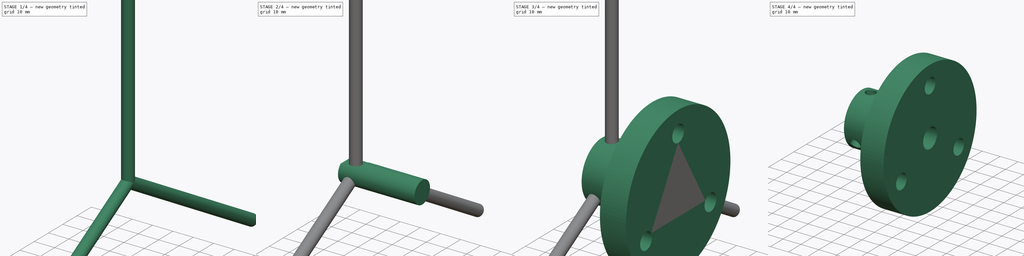
[diagram: build sequence overview — one tinted view per stage of 4, left to right]
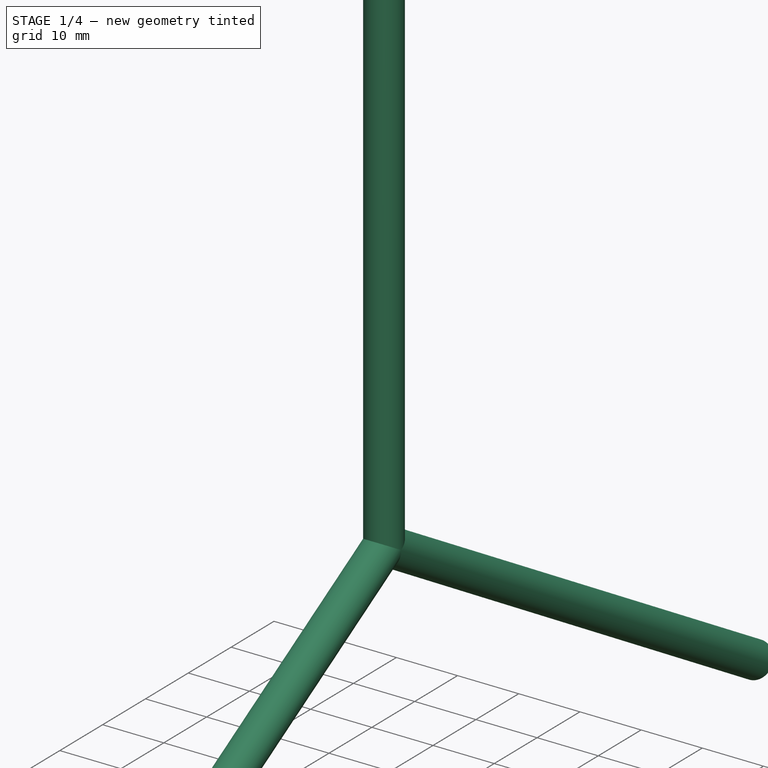
[diagram: stage 1 of 4 — iso view after this stage's code; geometry added in this stage tinted green]
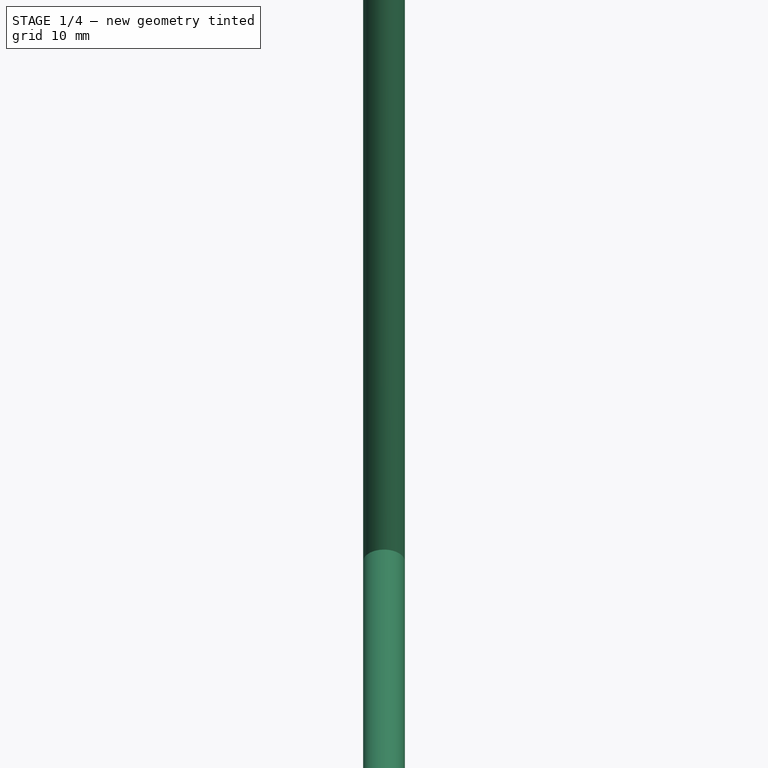
[diagram: stage 1 of 4 — front view after this stage's code; geometry added in this stage tinted green]
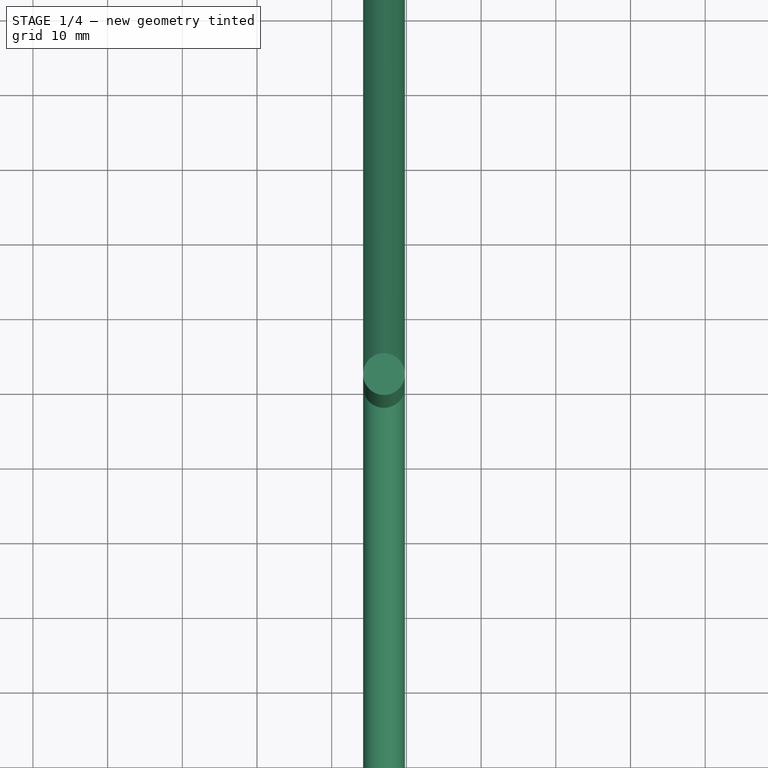
[diagram: stage 1 of 4 — top view after this stage's code; geometry added in this stage tinted green]
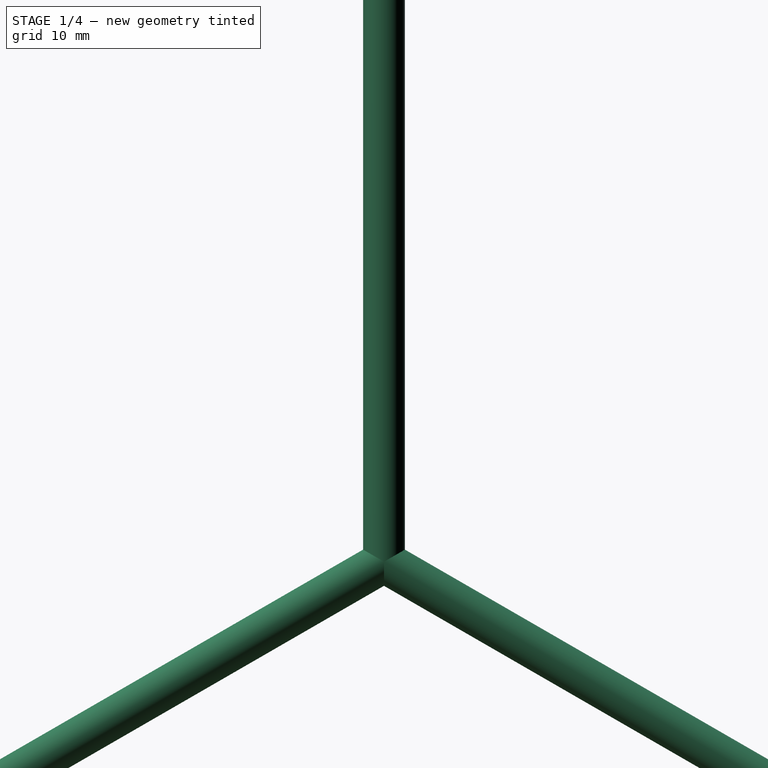
[diagram: stage 1 of 4 — right view after this stage's code; geometry added in this stage tinted green]
FCSTD DOCUMENT  (FreeCAD 0.15R4606 (Git))
Label: hub
License: All rights reserved
LicenseURL: http://en.wikipedia.org/wiki/All_rights_reserved
objects: Sketcher::SketchObject×3, Part::Cut×3, Part::Cylinder×2, App::MeasureDistance×2, PartDesign::Revolution×1, PartDesign::Pad×1, PartDesign::Pocket×1, Part::FeaturePython×1
note: 15 computed .brp shape members not serialized (recipe doc carries the construction recipe); baked Part::Feature solids carry a one-line shape summary decoded from their .brp

FEATURE [Part::Cylinder] Cylinder  label="Set Screw Hole"
  Angle = 360
  Height = 100
  Placement = pos=(-33,0,0) rot=(0,0,1;0rad)
  Radius = 2.8
FEATURE [Part::FeaturePython] Array  label="Set Screw Array"  # Draft array (typed FeaturePython)
  Angle = 360
  ArrayType = 1
  Axis = (1,0,0)
  Base = -> Cylinder
  Center = (0,0,0)
  Fuse = false
  IntervalAxis = (0,0,0)
  IntervalX = (1,0,0)
  IntervalY = (0,1,0)
  IntervalZ = (0,0,0)
  NumberPolar = 3
  NumberX = 2
  NumberY = 2
  NumberZ = 1
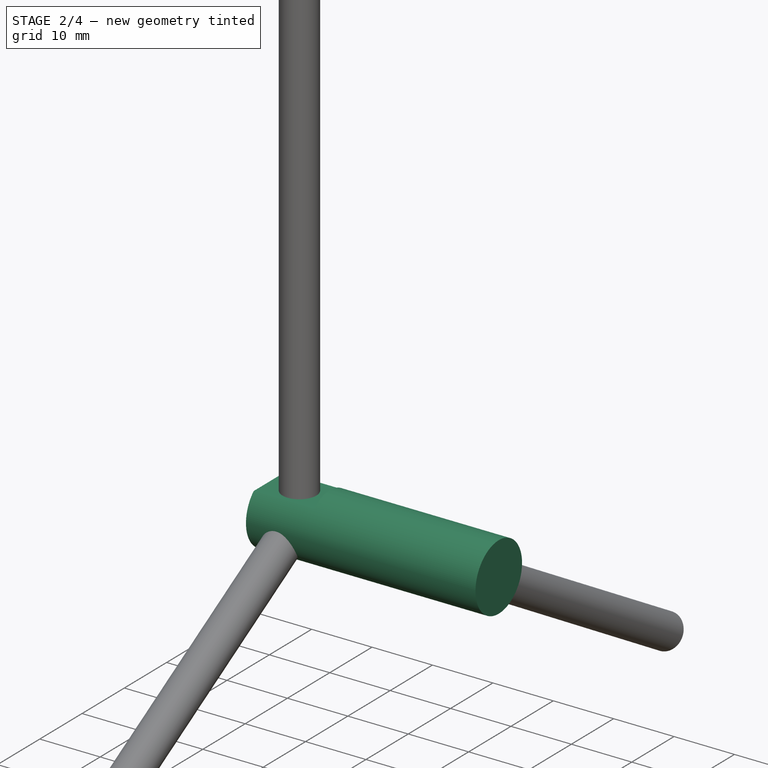
[diagram: stage 2 of 4 — iso view after this stage's code; geometry added in this stage tinted green]
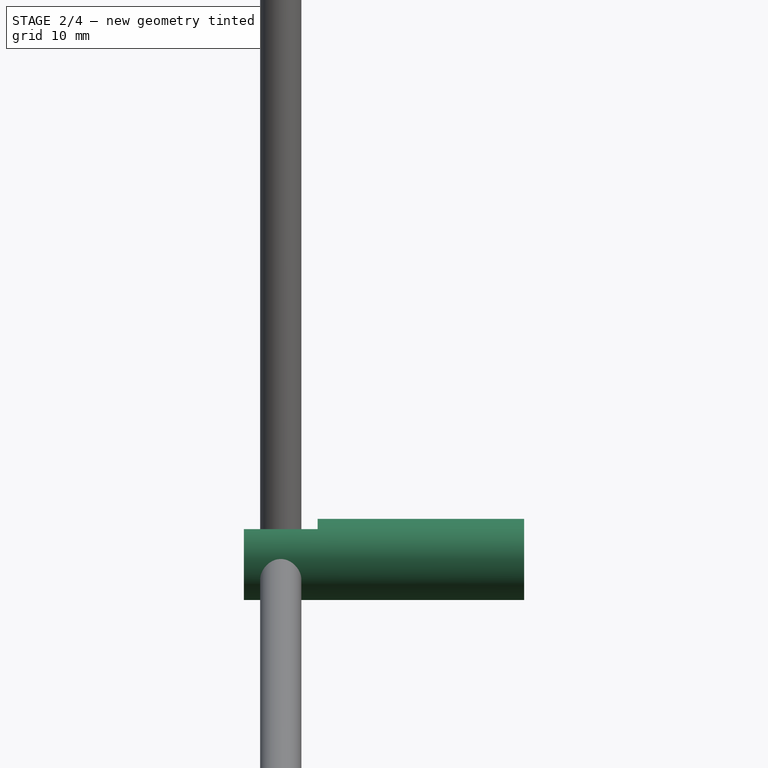
[diagram: stage 2 of 4 — front view after this stage's code; geometry added in this stage tinted green]
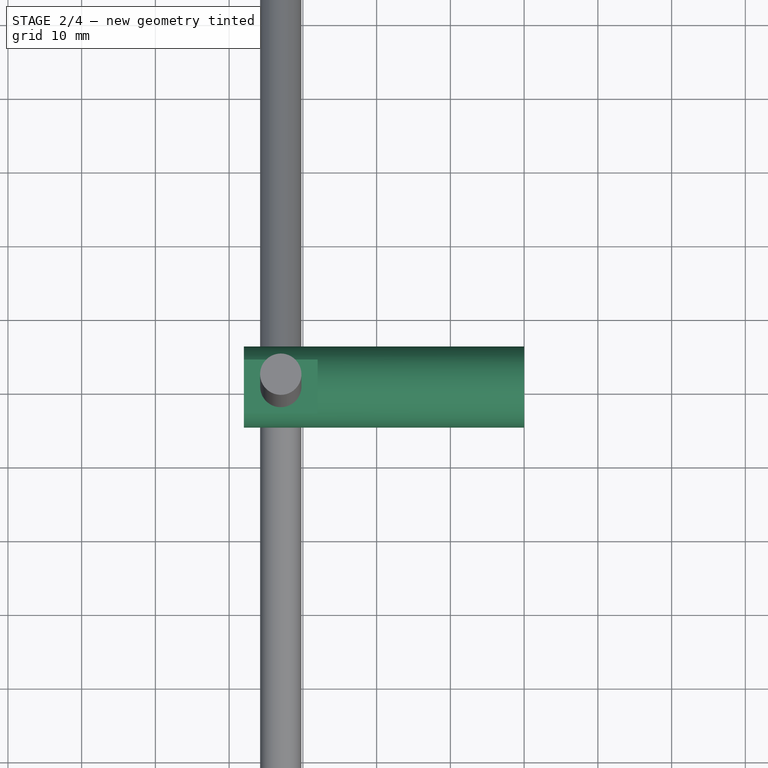
[diagram: stage 2 of 4 — top view after this stage's code; geometry added in this stage tinted green]
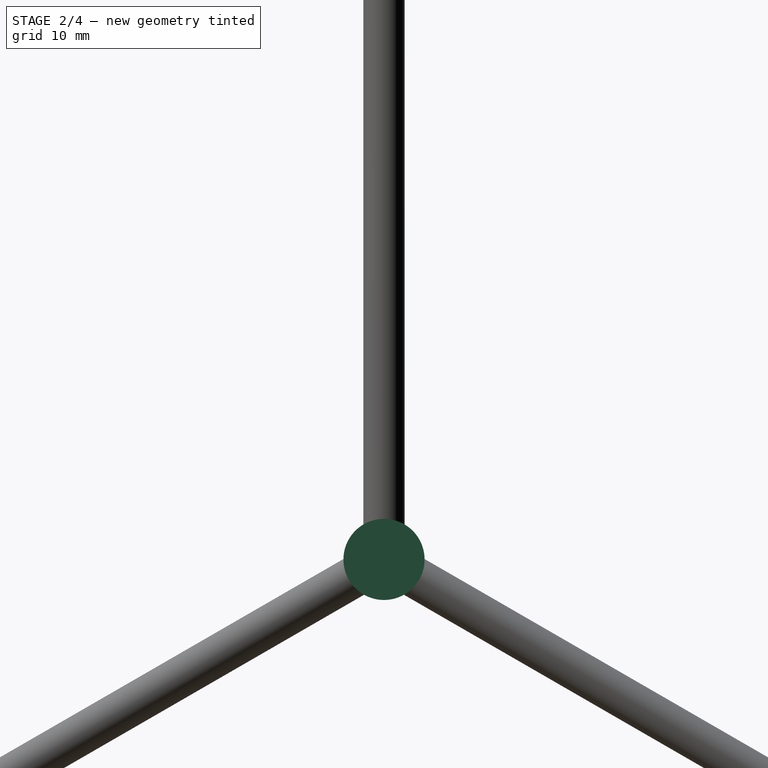
[diagram: stage 2 of 4 — right view after this stage's code; geometry added in this stage tinted green]
FEATURE [Part::Cylinder] Cylinder001  label="Cylinder"
  Angle = 360
  Height = 38
  Placement = pos=(0,0,0) rot=(0,-1,0;1.5708rad)
  Radius = 5.5
FEATURE [App::MeasureDistance] Distance  label="Distance: 28.271"
  Distance = 28.2708
  P1 = (-38,9.04839,-11.0279)
  P2 = (-38,-11.7192,8.15405)
FEATURE [Sketcher::SketchObject] Sketch003  label="D-Bore Sketch"
  Placement = pos=(-38,0,0) rot=(0,-1,0;1.5708rad)
  Support = -> Cylinder001 [Face2]
  sketch-geometry (4):
    g0: LineSegment StartX=4.1 StartY=10 StartZ=0 EndX=10.1 EndY=10 EndZ=0
    g1: LineSegment StartX=10.1 StartY=10 StartZ=0 EndX=10.1 EndY=-10 EndZ=0
    g2: LineSegment StartX=10.1 StartY=-10 StartZ=0 EndX=4.1 EndY=-10 EndZ=0
    g3: LineSegment StartX=4.1 StartY=-10 StartZ=0 EndX=4.1 EndY=10 EndZ=0
  constraints (12):
    c: Coincident(g0,g1)
    c: Coincident(g1,g2)
    c: Coincident(g2,g3)
    c: Coincident(g3,g0)
    c: Horizontal(g0)
    c: Horizontal(g2)
    c: Vertical(g1)
    c: Vertical(g3)
    c: DistanceX(g-1,g0) = 4.1
    c: Distance(g0) = 6
    c: Symmetric(g0,g2,g-1)
    c: Distance(g3) = 20
FEATURE [PartDesign::Pocket] Pocket
  Length = 10
  Placement = pos=(0,0,0) rot=(0,-1,0;1.5708rad)
  Sketch = -> Sketch003
  Type = 0
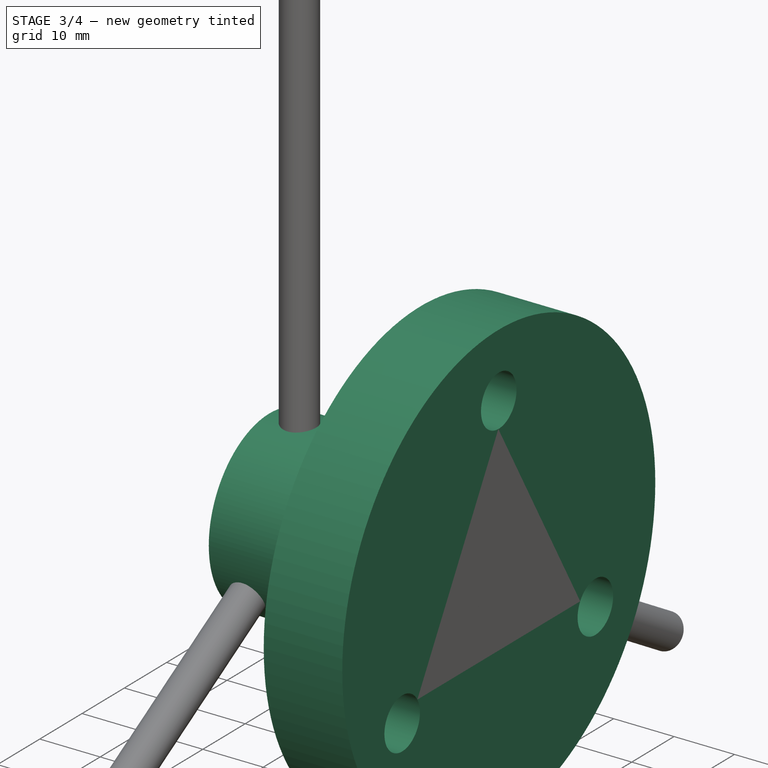
[diagram: stage 3 of 4 — iso view after this stage's code; geometry added in this stage tinted green]
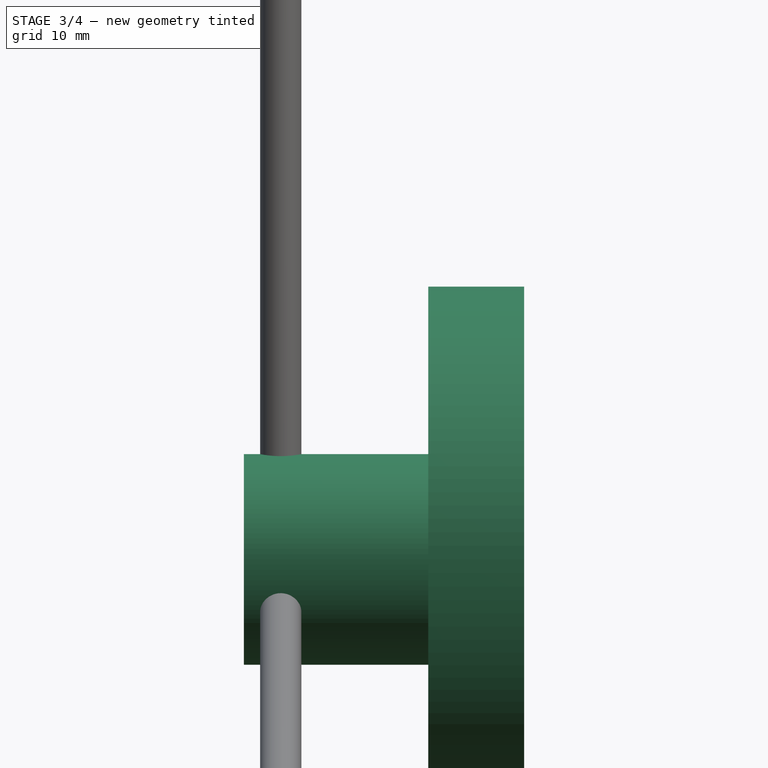
[diagram: stage 3 of 4 — front view after this stage's code; geometry added in this stage tinted green]
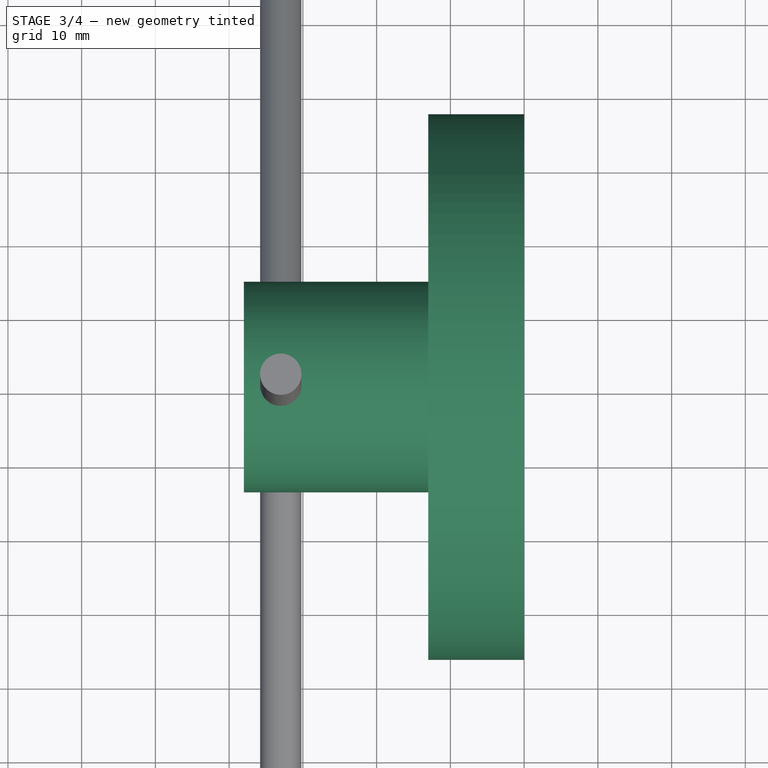
[diagram: stage 3 of 4 — top view after this stage's code; geometry added in this stage tinted green]
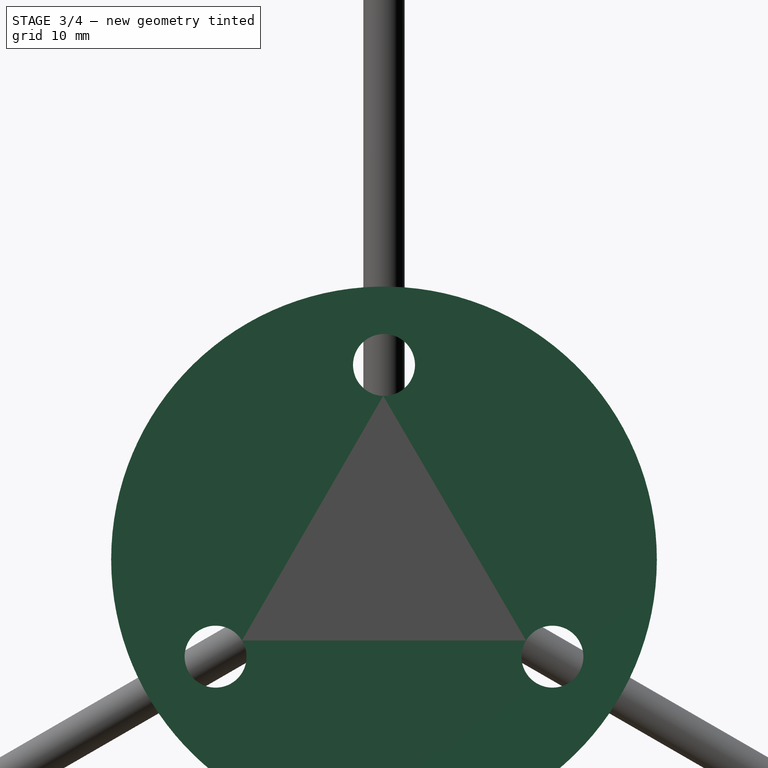
[diagram: stage 3 of 4 — right view after this stage's code; geometry added in this stage tinted green]
FEATURE [Sketcher::SketchObject] Sketch
  sketch-geometry (6):
    g0: LineSegment StartX=0 StartY=37 StartZ=0 EndX=-13 EndY=37 EndZ=0
    g1: LineSegment StartX=-13 StartY=37 StartZ=0 EndX=-13 EndY=14.2875 EndZ=0
    g2: LineSegment StartX=-13 StartY=14.2875 StartZ=0 EndX=-38 EndY=14.2875 EndZ=0
    g3: LineSegment StartX=-38 StartY=14.2875 StartZ=0 EndX=-38 EndY=0 EndZ=0
    g4: LineSegment StartX=0 StartY=0 StartZ=0 EndX=0 EndY=37 EndZ=0
    g5: LineSegment StartX=-38 StartY=0 StartZ=0 EndX=0 EndY=0 EndZ=0
  constraints (18):
    c: PointOnObject(g0,g-2)
    c: Horizontal(g0)
    c: Coincident(g0,g1)
    c: Vertical(g1)
    c: Coincident(g1,g2)
    c: Horizontal(g2)
    c: Coincident(g2,g3)
    c: Vertical(g4)
    c: Coincident(g0,g4)
    c: Vertical(g3)
    c: DistanceX(g0) = -13
    c: DistanceX(g2) = -25
    c: Distance(g3) = 14.2875
    c: Distance(g4) = 37
    c: Horizontal(g5)
    c: Coincident(g4,g5)
    c: Coincident(g4,g-1)
    c: Coincident(g3,g5)
FEATURE [PartDesign::Revolution] Revolution
  Angle = 360
  Axis = (1,0,0)
  Base = (0,0,0)
  ReferenceAxis = -> Sketch [H_Axis]
  Sketch = -> Sketch
FEATURE [Sketcher::SketchObject] Sketch002
  Placement = pos=(0,0,0) rot=(0.57735,0.57735,0.57735;2.0944rad)
  sketch-geometry (6):
    g0: Circle CenterX=0 CenterY=26.3725 CenterZ=0 NormalX=0 NormalY=0 NormalZ=1 Radius=4.2
    g1: Circle CenterX=-22.8393 CenterY=-13.1862 CenterZ=0 NormalX=0 NormalY=0 NormalZ=1 Radius=4.2
    g2: Circle CenterX=22.8393 CenterY=-13.1862 CenterZ=0 NormalX=0 NormalY=0 NormalZ=1 Radius=4.2
    g3: LineSegment [constr] StartX=-22.8393 StartY=-13.1862 StartZ=0 EndX=0 EndY=0 EndZ=0
    g4: LineSegment [constr] StartX=0 StartY=0 StartZ=0 EndX=0 EndY=26.3725 EndZ=0
    g5: LineSegment [constr] StartX=0 StartY=0 StartZ=0 EndX=22.8393 EndY=-13.1862 EndZ=0
  constraints (15):
    c: Equal(g1,g0)
    c: Equal(g0,g2)
    c: Radius(g0) = 4.2
    c: Coincident(g3,g4)
    c: Coincident(g3,g5)
    c: Angle(g4,g3) = 2.0944
    c: Angle(g5,g4) = 2.0944
    c: Equal(g3,g4)
    c: Equal(g4,g5)
    c: Distance(g3) = 26.3725
    c: PointOnObject(g4,g-2)
    c: Coincident(g3,g-1)
    c: Coincident(g0,g4)
    c: Coincident(g1,g3)
    c: Coincident(g5,g2)
FEATURE [PartDesign::Pad] Pad
  Length = 38
  Length2 = 100
  Placement = pos=(0,0,0) rot=(0.57735,0.57735,0.57735;2.0944rad)
  Reversed = true
  Sketch = -> Sketch002
  Type = 0
FEATURE [Part::Cut] Cut
  Base = -> Revolution
  Tool = -> Pad
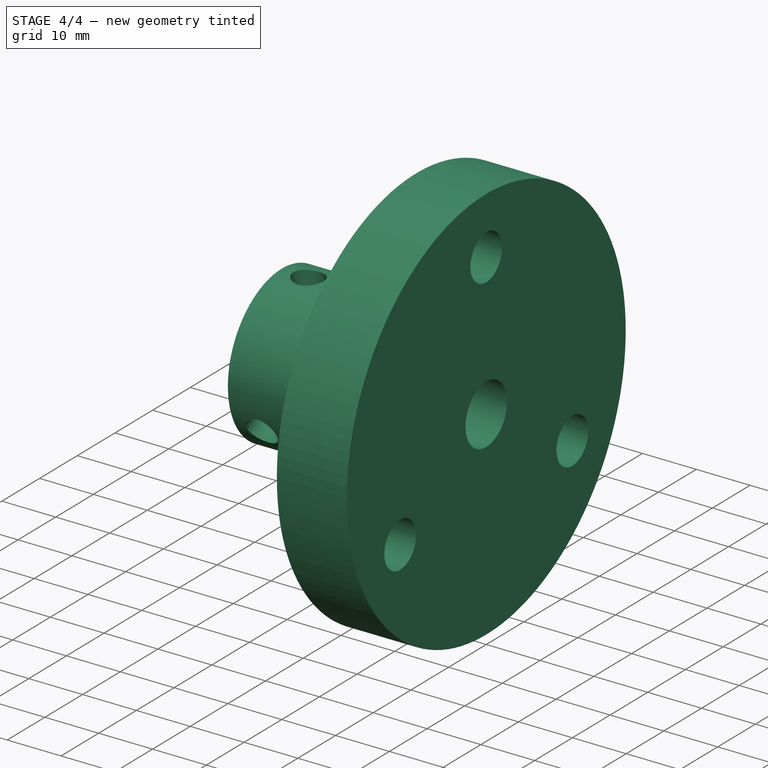
[diagram: stage 4 of 4 — iso view after this stage's code; geometry added in this stage tinted green]
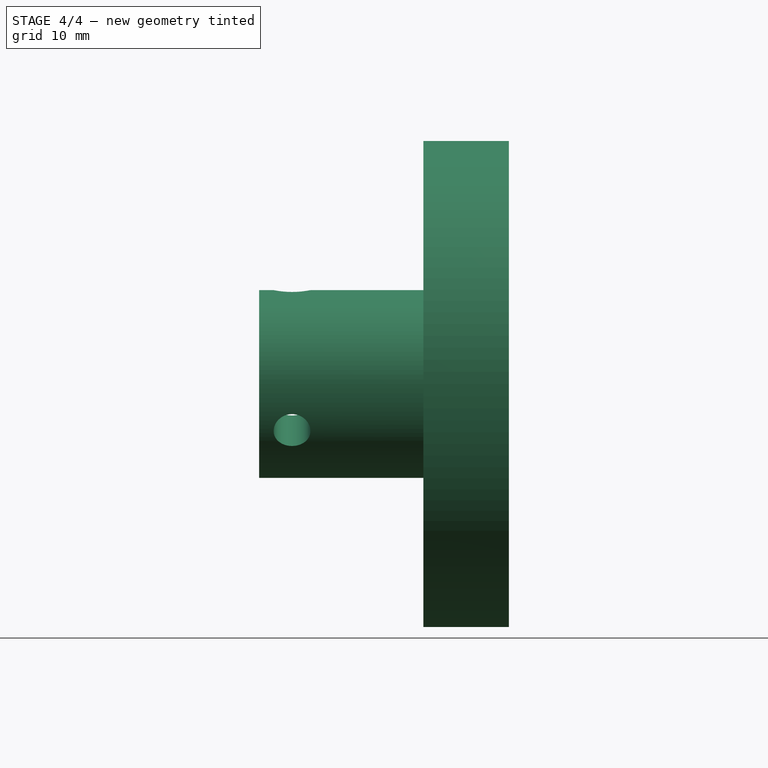
[diagram: stage 4 of 4 — front view after this stage's code; geometry added in this stage tinted green]
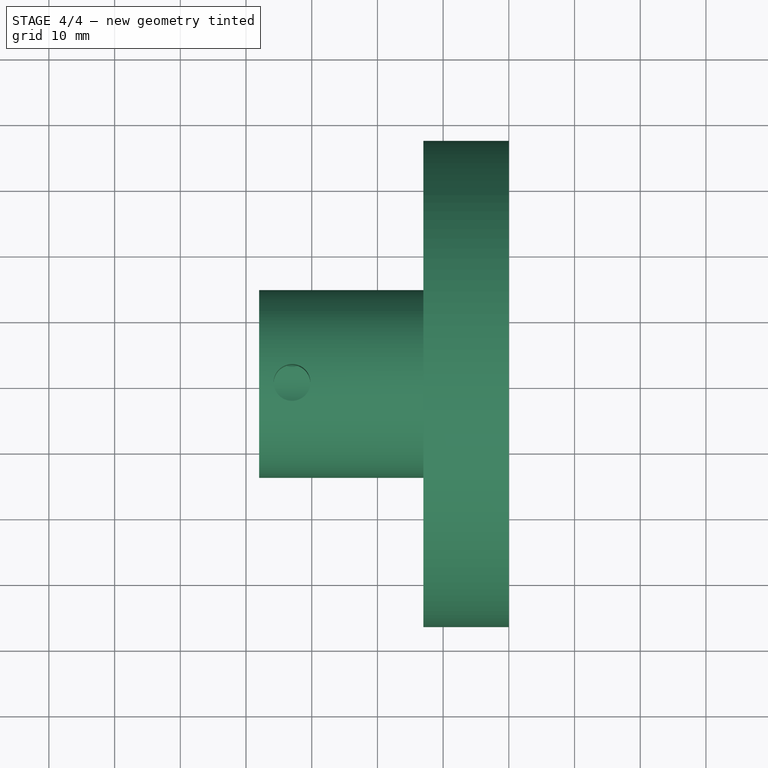
[diagram: stage 4 of 4 — top view after this stage's code; geometry added in this stage tinted green]
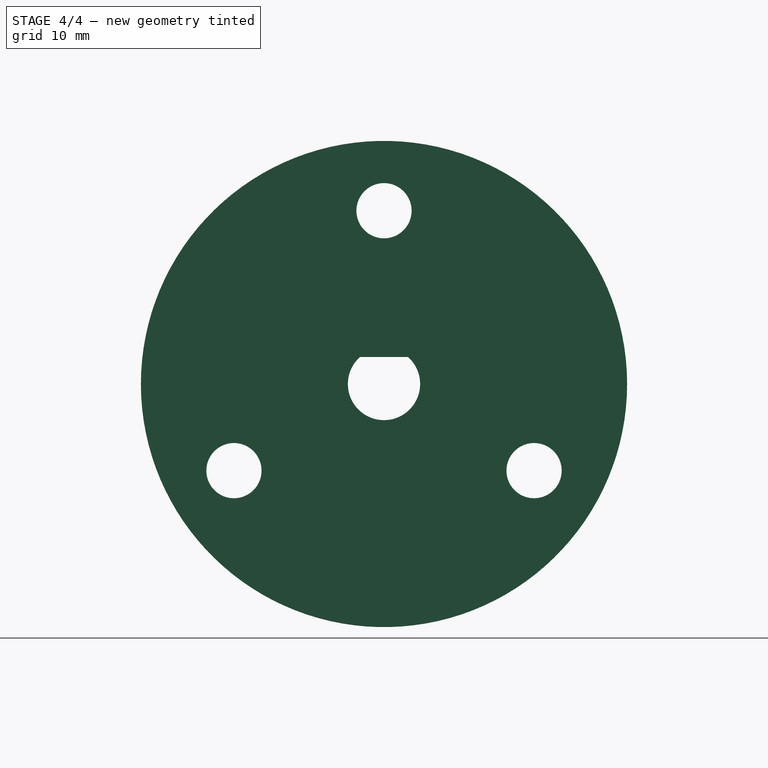
[diagram: stage 4 of 4 — right view after this stage's code; geometry added in this stage tinted green]
FEATURE [Part::Cut] Cut001
  Base = -> Cut
  Tool = -> Pocket
FEATURE [Part::Cut] Cut002
  Base = -> Cut001
  Tool = -> Array
FEATURE [App::MeasureDistance] Distance001  label="Distance: 8.962"
  Distance = 8.96244
  P1 = (-38,1.88635,-5.16468)
  P2 = (-38,7.54435,-12.1154)
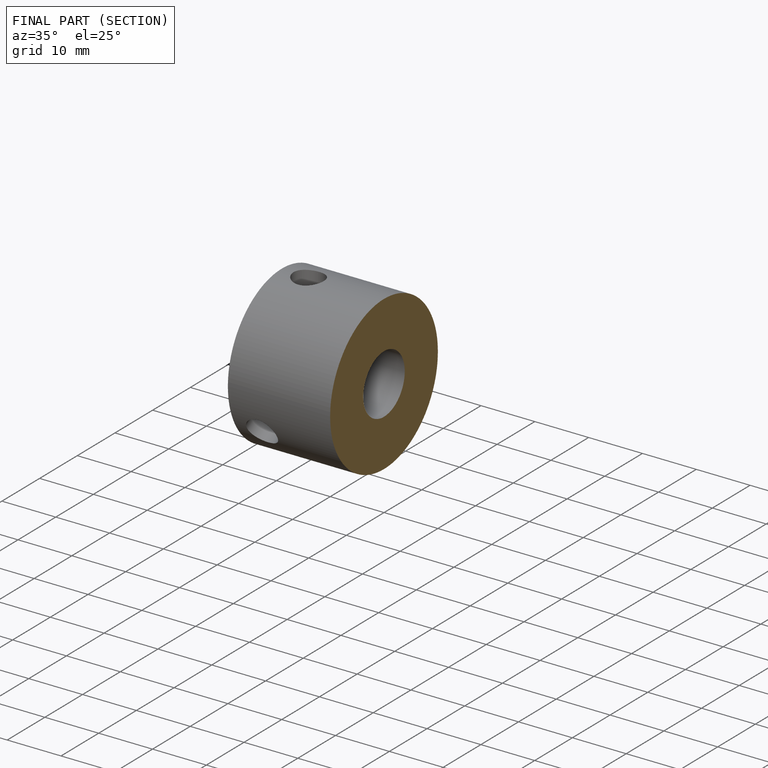
[diagram: finished part — half-section view (interior)]
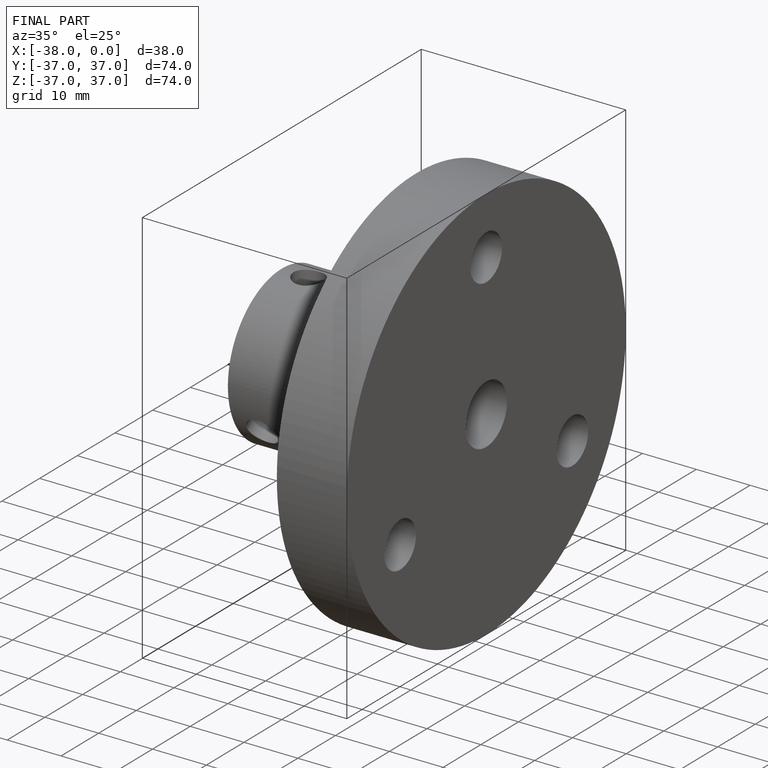
[diagram: finished part — iso view with bounding-box wireframe]
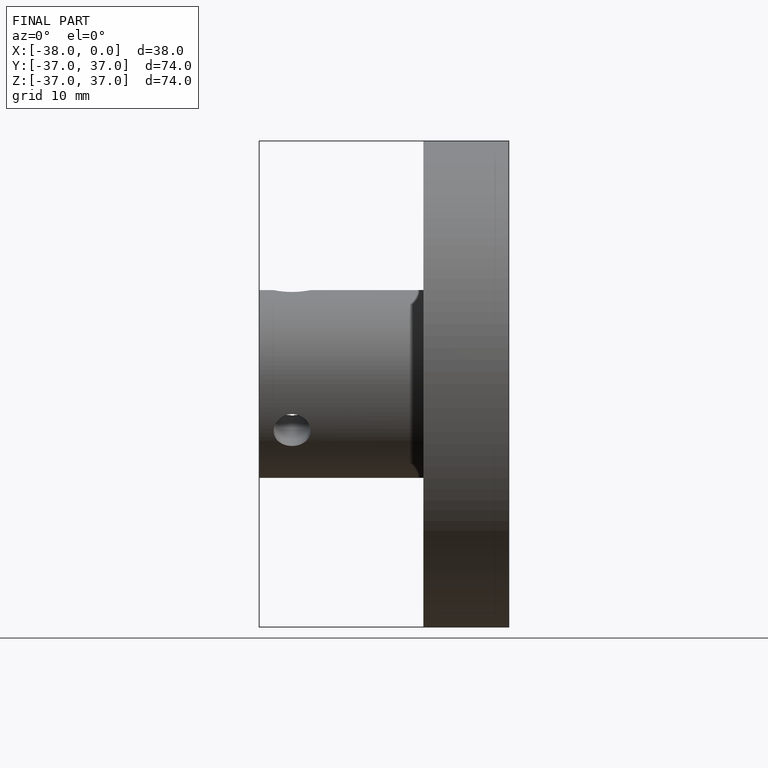
[diagram: finished part — front view with bounding-box wireframe]
